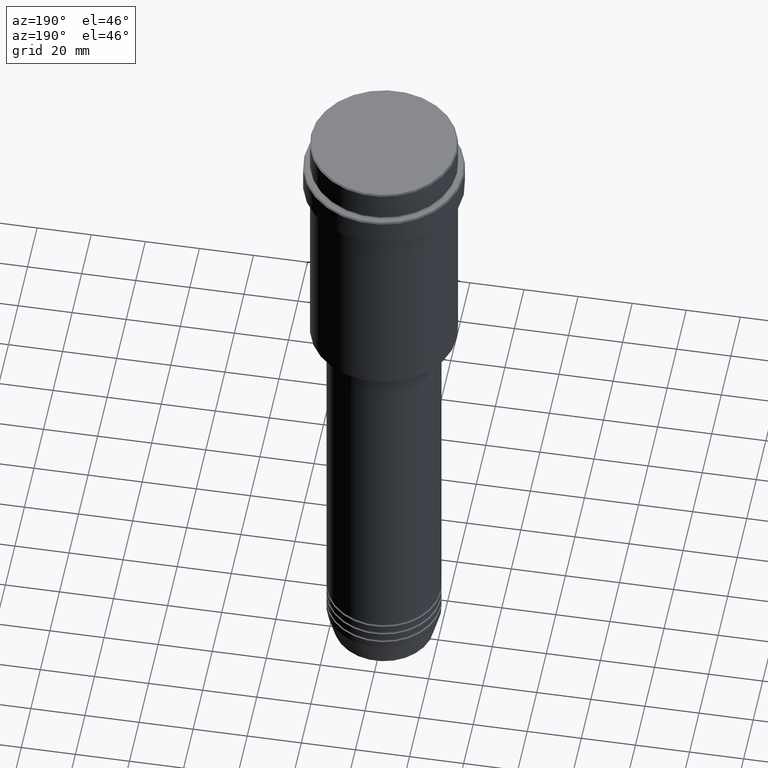
[diagram: clean part render]
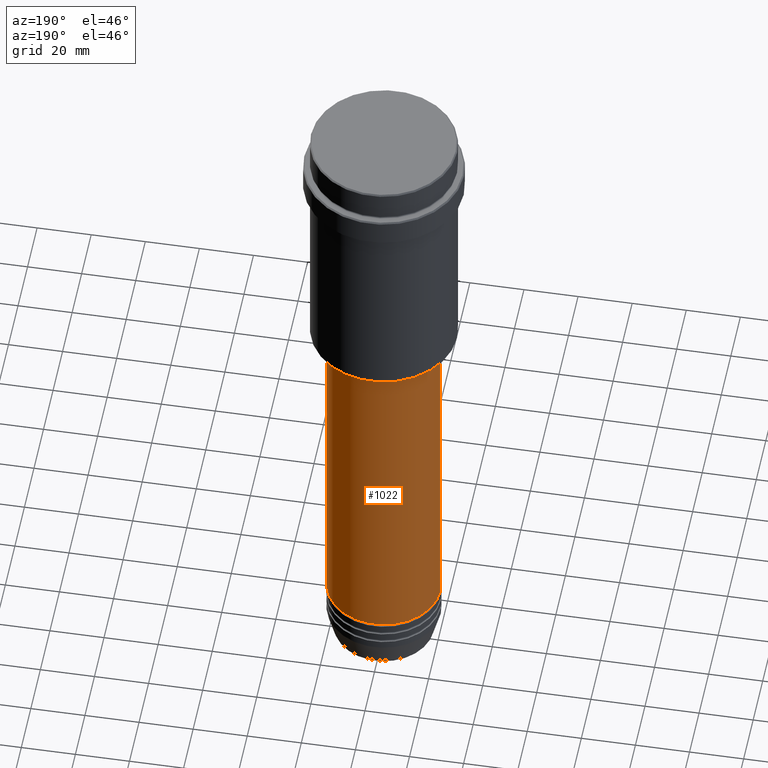
[diagram: same view with one face highlighted and labeled with its STEP entity id]
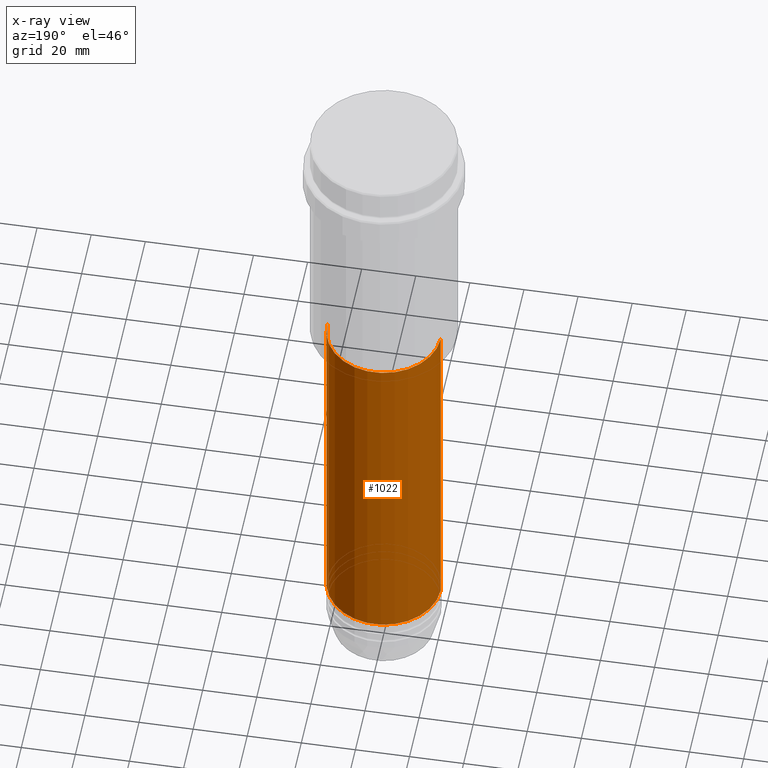
[diagram: x-ray of the same camera — body ghosted, the highlighted face saturated]
A machine part, auxiliary view. The second image highlights one B-rep face of the part: STEP entity #1022.
The next image is the same camera in x-ray: the body ghosted, the highlighted face saturated — about 0% of this face is hidden behind the body in this view.
In plain terms, the highlighted cylindrical surface (partial cylindrical patch) has radius 21 mm, axis along (-0, -0, 1).
Its self-contained STEP definition (entity closure, byte-faithful):
#1 = DIRECTION ( 'NONE',  ( 1.000000000000000000, 0.000000000000000000, 0.000000000000000000 ) ) ;
#82 = VECTOR ( 'NONE', #1220, 1000.000000000000000 ) ;
#89 = CARTESIAN_POINT ( 'NONE',  ( 0.000000000000000000, 0.000000000000000000, 0.000000000000000000 ) ) ;
#97 = CARTESIAN_POINT ( 'NONE',  ( 21.00000000000000000, 0.000000000000000000, 0.000000000000000000 ) ) ;
#148 = AXIS2_PLACEMENT_3D ( 'NONE', #384, #1045, #280 ) ;
#161 = VERTEX_POINT ( 'NONE', #980 ) ;
#190 = VERTEX_POINT ( 'NONE', #1194 ) ;
#206 = ORIENTED_EDGE ( 'NONE', *, *, #960, .F. ) ;
#228 = EDGE_LOOP ( 'NONE', ( #237, #896, #206, #681 ) ) ;
#237 = ORIENTED_EDGE ( 'NONE', *, *, #635, .T. ) ;
#280 = DIRECTION ( 'NONE',  ( 1.000000000000000000, 0.000000000000000000, 0.000000000000000000 ) ) ;
#369 = DIRECTION ( 'NONE',  ( 1.000000000000000000, 0.000000000000000000, 0.000000000000000000 ) ) ;
#384 = CARTESIAN_POINT ( 'NONE',  ( 0.000000000000000000, 0.000000000000000000, -99.00000000000000000 ) ) ;
#416 = CARTESIAN_POINT ( 'NONE',  ( -21.00000000000000000, 2.571758278209441661E-15, -99.00000000000000000 ) ) ;
#426 = DIRECTION ( 'NONE',  ( -0.000000000000000000, -0.000000000000000000, 1.000000000000000000 ) ) ;
#452 = LINE ( 'NONE', #887, #82 ) ;
#471 = EDGE_CURVE ( 'NONE', #190, #753, #452, .T. ) ;
#480 = CYLINDRICAL_SURFACE ( 'NONE', #1381, 21.00000000000000000 ) ;
#496 = CIRCLE ( 'NONE', #1293, 21.00000000000000000 ) ;
#572 = CARTESIAN_POINT ( 'NONE',  ( 21.00000000000000000, 0.000000000000000000, -99.00000000000000000 ) ) ;
#635 = EDGE_CURVE ( 'NONE', #161, #190, #496, .T. ) ;
#656 = CIRCLE ( 'NONE', #148, 21.00000000000000000 ) ;
#681 = ORIENTED_EDGE ( 'NONE', *, *, #707, .F. ) ;
#707 = EDGE_CURVE ( 'NONE', #161, #761, #1305, .T. ) ;
#708 = DIRECTION ( 'NONE',  ( -0.000000000000000000, -0.000000000000000000, 1.000000000000000000 ) ) ;
#753 = VERTEX_POINT ( 'NONE', #416 ) ;
#761 = VERTEX_POINT ( 'NONE', #572 ) ;
#818 = VECTOR ( 'NONE', #1077, 1000.000000000000000 ) ;
#887 = CARTESIAN_POINT ( 'NONE',  ( -21.00000000000000000, 2.571758278209441661E-15, 0.000000000000000000 ) ) ;
#896 = ORIENTED_EDGE ( 'NONE', *, *, #471, .T. ) ;
#960 = EDGE_CURVE ( 'NONE', #761, #753, #656, .T. ) ;
#980 = CARTESIAN_POINT ( 'NONE',  ( 21.00000000000000000, 0.000000000000000000, -230.9999999999998863 ) ) ;
#1022 = ADVANCED_FACE ( 'NONE', ( #1153 ), #480, .T. ) ;
#1045 = DIRECTION ( 'NONE',  ( -0.000000000000000000, -0.000000000000000000, 1.000000000000000000 ) ) ;
#1077 = DIRECTION ( 'NONE',  ( -0.000000000000000000, -0.000000000000000000, 1.000000000000000000 ) ) ;
#1153 = FACE_OUTER_BOUND ( 'NONE', #228, .T. ) ;
#1173 = CARTESIAN_POINT ( 'NONE',  ( 0.000000000000000000, 0.000000000000000000, -230.9999999999998863 ) ) ;
#1194 = CARTESIAN_POINT ( 'NONE',  ( -21.00000000000000000, 2.571758278209441661E-15, -230.9999999999998863 ) ) ;
#1220 = DIRECTION ( 'NONE',  ( -0.000000000000000000, -0.000000000000000000, 1.000000000000000000 ) ) ;
#1293 = AXIS2_PLACEMENT_3D ( 'NONE', #1173, #426, #1 ) ;
#1305 = LINE ( 'NONE', #97, #818 ) ;
#1381 = AXIS2_PLACEMENT_3D ( 'NONE', #89, #708, #369 ) ;